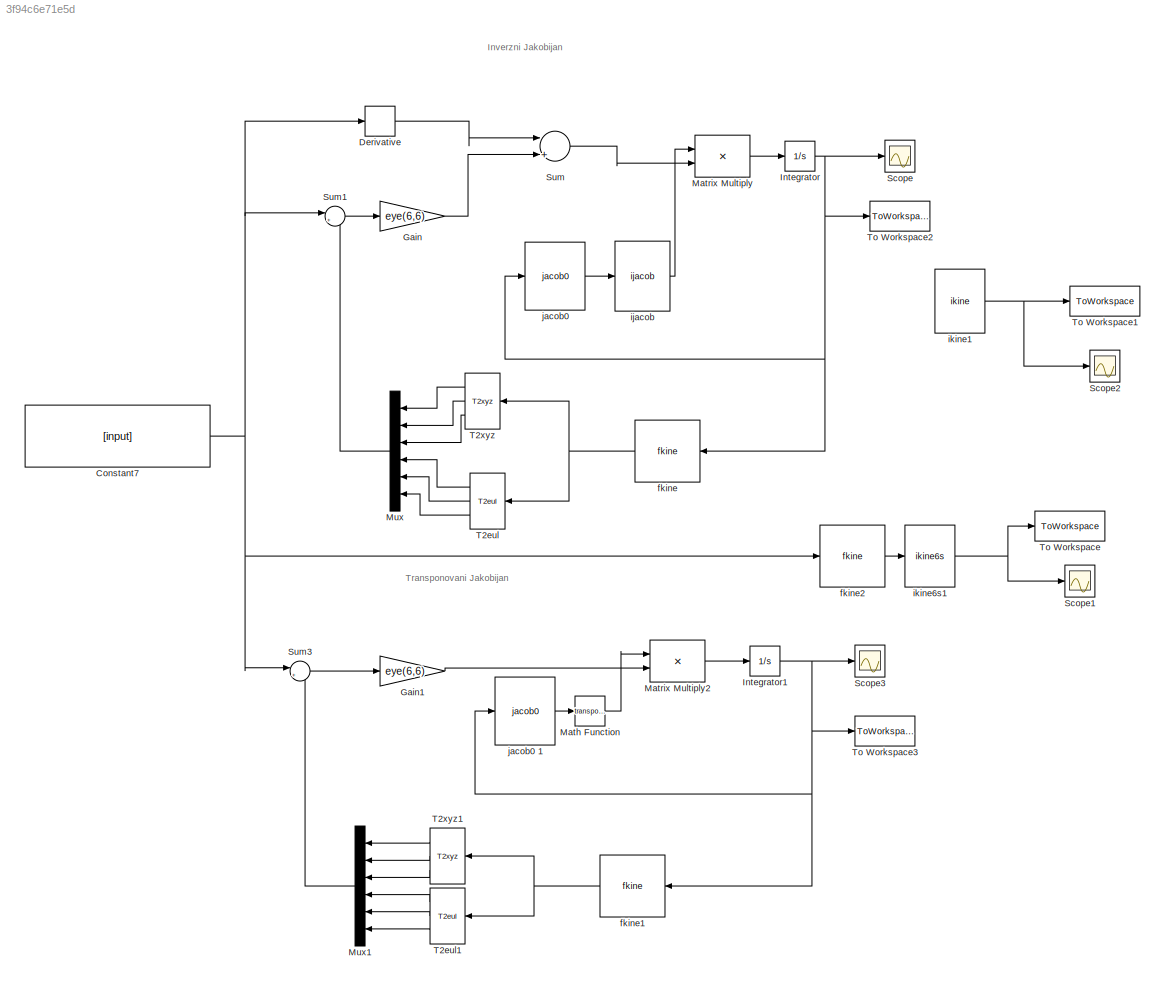
MODEL slx_3f94c6e71e5d
KIND model
CONFIG AbsTol = auto
CONFIG FixedStep = 0.001
CONFIG MaxStep = auto
CONFIG MinStep = auto
CONFIG RelTol = 1e-3
CONFIG SampleTimeConstraint = Unconstrained
CONFIG Solver = VariableStepAuto
CONFIG SolverMode = Auto
CONFIG SolverName = VariableStepAuto
CONFIG StartTime = 0.0
CONFIG StopTime = 10
BLOCK [Constant] Constant7
  Value = [input]
BLOCK [Derivative] Derivative
BLOCK [Gain] Gain
  Gain = eye(6,6)
  Multiplication = Matrix(K*u)
  OutDataTypeStr = Inherit: Inherit via internal rule
  ParamDataTypeStr = Inherit: Inherit via internal rule
  SaturateOnIntegerOverflow = off
BLOCK [Gain] Gain1
  Gain = eye(6,6)
  Multiplication = Matrix(K*u)
  OutDataTypeStr = Inherit: Inherit via internal rule
  ParamDataTypeStr = Inherit: Inherit via internal rule
  SaturateOnIntegerOverflow = off
BLOCK [Integrator] Integrator
  InitialCondition = init
  Ports = [1, 1]
BLOCK [Integrator] Integrator1
  Ports = [1, 1]
BLOCK [Math] Math Function
  Operator = transpose
  Ports = [1, 1]
BLOCK [Product] Matrix Multiply
  InputSameDT = off
  Multiplication = Matrix(*)
  OutDataTypeStr = Inherit: Inherit via internal rule
  Ports = [2, 1]
  RndMeth = Floor
  SaturateOnIntegerOverflow = off
BLOCK [Product] Matrix Multiply2
  InputSameDT = off
  Multiplication = Matrix(*)
  OutDataTypeStr = Inherit: Inherit via internal rule
  Ports = [2, 1]
  RndMeth = Floor
  SaturateOnIntegerOverflow = off
BLOCK [Mux] Mux
  DisplayOption = bar
  Inputs = 6
  Ports = [6, 1]
BLOCK [Mux] Mux1
  DisplayOption = bar
  Inputs = 6
  Ports = [6, 1]
BLOCK [Scope] Scope
  Ports = [1]
  ScopeSpecificationString = Simulink.scopes.TimeScopeBlockCfg('CurrentConfiguration', extmgr.ConfigurationSet(extmgr.Configuration('Core','General UI',true),extmgr.Configuration('Core','Source UI',true),extmgr.Configuration('Sources','WiredSimulink',true,'DataLoggingLimitDataPoints',true,'DataLoggingSaveFormat','Array','DataLoggingDecimation','1','DataLoggingDecimateData',true),extmgr.Configuration('Visuals','Time Domain',tr...<+1603ch>
BLOCK [Scope] Scope1
  Ports = [1]
  ScopeSpecificationString = Simulink.scopes.TimeScopeBlockCfg('CurrentConfiguration', extmgr.ConfigurationSet(extmgr.Configuration('Core','General UI',true),extmgr.Configuration('Core','Source UI',true),extmgr.Configuration('Sources','WiredSimulink',true,'DataLoggingLimitDataPoints',true,'DataLoggingSaveFormat','Array','DataLoggingDecimation','1','DataLoggingDecimateData',true,'DataLoggingVariableName','ScopeData1'),extmgr.C...<+1659ch>
BLOCK [Scope] Scope2
  Commented = on
  Ports = [1]
  ScopeSpecificationString = Simulink.scopes.TimeScopeBlockCfg('CurrentConfiguration', extmgr.ConfigurationSet(extmgr.Configuration('Core','General UI',true),extmgr.Configuration('Core','Source UI',true),extmgr.Configuration('Sources','WiredSimulink',true,'DataLoggingLimitDataPoints',true,'DataLoggingSaveFormat','Array','DataLoggingDecimation','1','DataLoggingDecimateData',true,'DataLoggingVariableName','ScopeData2'),extmgr.C...<+1636ch>
BLOCK [Scope] Scope3
  Ports = [1]
  ScopeSpecificationString = Simulink.scopes.TimeScopeBlockCfg('CurrentConfiguration', extmgr.ConfigurationSet(extmgr.Configuration('Core','General UI',true),extmgr.Configuration('Core','Source UI',true),extmgr.Configuration('Sources','WiredSimulink',true,'DataLoggingLimitDataPoints',true,'DataLoggingSaveFormat','Array','DataLoggingDecimation','1','DataLoggingDecimateData',true,'DataLoggingVariableName','ScopeData1'),extmgr.C...<+1631ch>
BLOCK [Sum] Sum
  InputSameDT = off
  Inputs = |++
  OutDataTypeStr = Inherit: Inherit via internal rule
  Ports = [2, 1]
  SaturateOnIntegerOverflow = off
BLOCK [Sum] Sum1
  IconShape = round
  InputSameDT = off
  Inputs = |+-
  OutDataTypeStr = Inherit: Inherit via internal rule
  Ports = [2, 1]
  SaturateOnIntegerOverflow = off
BLOCK [Sum] Sum3
  IconShape = round
  InputSameDT = off
  Inputs = |+-
  OutDataTypeStr = Inherit: Inherit via internal rule
  Ports = [2, 1]
  SaturateOnIntegerOverflow = off
BLOCK [Reference] T2eul  REF=roblocks/Transform Conversion/T2eul  (lib defined in mdl_2a292b13c81b, mdl_69400f8cfe22, +12 more)
  Ports = [1, 3]
  SourceBlock = roblocks/Transform Conversion/T2eul
BLOCK [Reference] T2eul1  REF=roblocks/Transform Conversion/T2eul  (lib defined in mdl_2a292b13c81b, mdl_69400f8cfe22, +12 more)
  Ports = [1, 3]
  SourceBlock = roblocks/Transform Conversion/T2eul
BLOCK [Reference] T2xyz  REF=roblocks/Transform Conversion/T2xyz  (lib defined in mdl_2a292b13c81b, mdl_69400f8cfe22, +12 more)
  Ports = [1, 3]
  SourceBlock = roblocks/Transform Conversion/T2xyz
BLOCK [Reference] T2xyz1  REF=roblocks/Transform Conversion/T2xyz  (lib defined in mdl_2a292b13c81b, mdl_69400f8cfe22, +12 more)
  Ports = [1, 3]
  SourceBlock = roblocks/Transform Conversion/T2xyz
BLOCK [ToWorkspace] To Workspace
  FixptAsFi = on
  MaxDataPoints = inf
  Ports = [1]
  SampleTime = -1
  Save2DSignal = 3-D array (concatenate along third dimension)
  VariableName = ikine6s_result
BLOCK [ToWorkspace] To Workspace1
  Commented = on
  FixptAsFi = on
  MaxDataPoints = inf
  Ports = [1]
  SampleTime = -1
  Save2DSignal = 3-D array (concatenate along third dimension)
  SaveFormat = Timeseries
  VariableName = ikine1_result
BLOCK [ToWorkspace] To Workspace2
  FixptAsFi = on
  MaxDataPoints = inf
  Ports = [1]
  SampleTime = -1
  Save2DSignal = 3-D array (concatenate along third dimension)
  VariableName = invJakRez
BLOCK [ToWorkspace] To Workspace3
  FixptAsFi = on
  MaxDataPoints = inf
  Ports = [1]
  SampleTime = -1
  Save2DSignal = 3-D array (concatenate along third dimension)
  VariableName = transJakRez
BLOCK [Reference] fkine  REF=roblocks/Kinematics/fkine  (lib defined in mdl_2a292b13c81b, mdl_69400f8cfe22, +12 more)
  Ports = [1, 1]
  SourceBlock = roblocks/Kinematics/fkine
BLOCK [Reference] fkine1  REF=roblocks/Kinematics/fkine  (lib defined in mdl_2a292b13c81b, mdl_69400f8cfe22, +12 more)
  Ports = [1, 1]
  SourceBlock = roblocks/Kinematics/fkine
BLOCK [Reference] fkine2  REF=roblocks/Kinematics/fkine  (lib defined in mdl_2a292b13c81b, mdl_69400f8cfe22, +12 more)
  Ports = [1, 1]
  SourceBlock = roblocks/Kinematics/fkine
BLOCK [Reference] ijacob  REF=roblocks/Kinematics/ijacob  (lib defined in mdl_2a292b13c81b, mdl_69400f8cfe22, +12 more)
  Ports = [1, 1]
  SourceBlock = roblocks/Kinematics/ijacob
BLOCK [Reference] ikine1  REF=roblocks/Kinematics/ikine  (lib defined in mdl_2a292b13c81b, mdl_69400f8cfe22, +12 more)
  Commented = on
  Ports = [1, 1]
  SourceBlock = roblocks/Kinematics/ikine
BLOCK [Reference] ikine6s1  REF=roblocks/Kinematics/ikine6s  (lib defined in mdl_2a292b13c81b, mdl_69400f8cfe22, +12 more)
  Ports = [1, 1]
  SourceBlock = roblocks/Kinematics/ikine6s
BLOCK [Reference] jacob0   REF=roblocks/Kinematics/jacob0  (lib defined in mdl_2a292b13c81b, mdl_69400f8cfe22, +12 more)

  Ports = [1, 1]
  SourceBlock = roblocks/Kinematics/jacob0
BLOCK [Reference] jacob0 1  REF=roblocks/Kinematics/jacob0  (lib defined in mdl_2a292b13c81b, mdl_69400f8cfe22, +12 more)

  Ports = [1, 1]
  SourceBlock = roblocks/Kinematics/jacob0
ANNOTATION (root): Transponovani Jakobijan
ANNOTATION (root): Inverzni Jakobijan
NET Constant7:1 -> Derivative:1, Sum1:1, Sum3:1, fkine2:1
LINE Derivative:1 -> Sum:1
LINE Gain1:1 -> Matrix Multiply2:2
LINE Gain:1 -> Sum:2
NET Integrator1:1 -> Scope3:1, To Workspace3:1, fkine1:1, jacob0 1:1
NET Integrator:1 -> Scope:1, To Workspace2:1, fkine:1, jacob0 :1
LINE Math Function:1 -> Matrix Multiply2:1
LINE Matrix Multiply2:1 -> Integrator1:1
LINE Matrix Multiply:1 -> Integrator:1
LINE Mux1:1 -> Sum3:2
LINE Mux:1 -> Sum1:2
LINE Sum1:1 -> Gain:1
LINE Sum3:1 -> Gain1:1
LINE Sum:1 -> Matrix Multiply:2
LINE T2eul1:1 -> Mux1:4
LINE T2eul1:2 -> Mux1:5
LINE T2eul1:3 -> Mux1:6
LINE T2eul:1 -> Mux:4
LINE T2eul:2 -> Mux:5
LINE T2eul:3 -> Mux:6
LINE T2xyz1:1 -> Mux1:1
LINE T2xyz1:2 -> Mux1:2
LINE T2xyz1:3 -> Mux1:3
LINE T2xyz:1 -> Mux:1
LINE T2xyz:2 -> Mux:2
LINE T2xyz:3 -> Mux:3
NET fkine1:1 -> T2eul1:1, T2xyz1:1
LINE fkine2:1 -> ikine6s1:1
NET fkine:1 -> T2eul:1, T2xyz:1
LINE ijacob:1 -> Matrix Multiply:1
NET ikine1:1 -> Scope2:1, To Workspace1:1
NET ikine6s1:1 -> Scope1:1, To Workspace:1
LINE jacob0 1:1 -> Math Function:1
LINE jacob0 :1 -> ijacob:1
note: NET lines group one-source signal fan-out (src -> all destinations, sorted); 1:1 wires keep LINE
